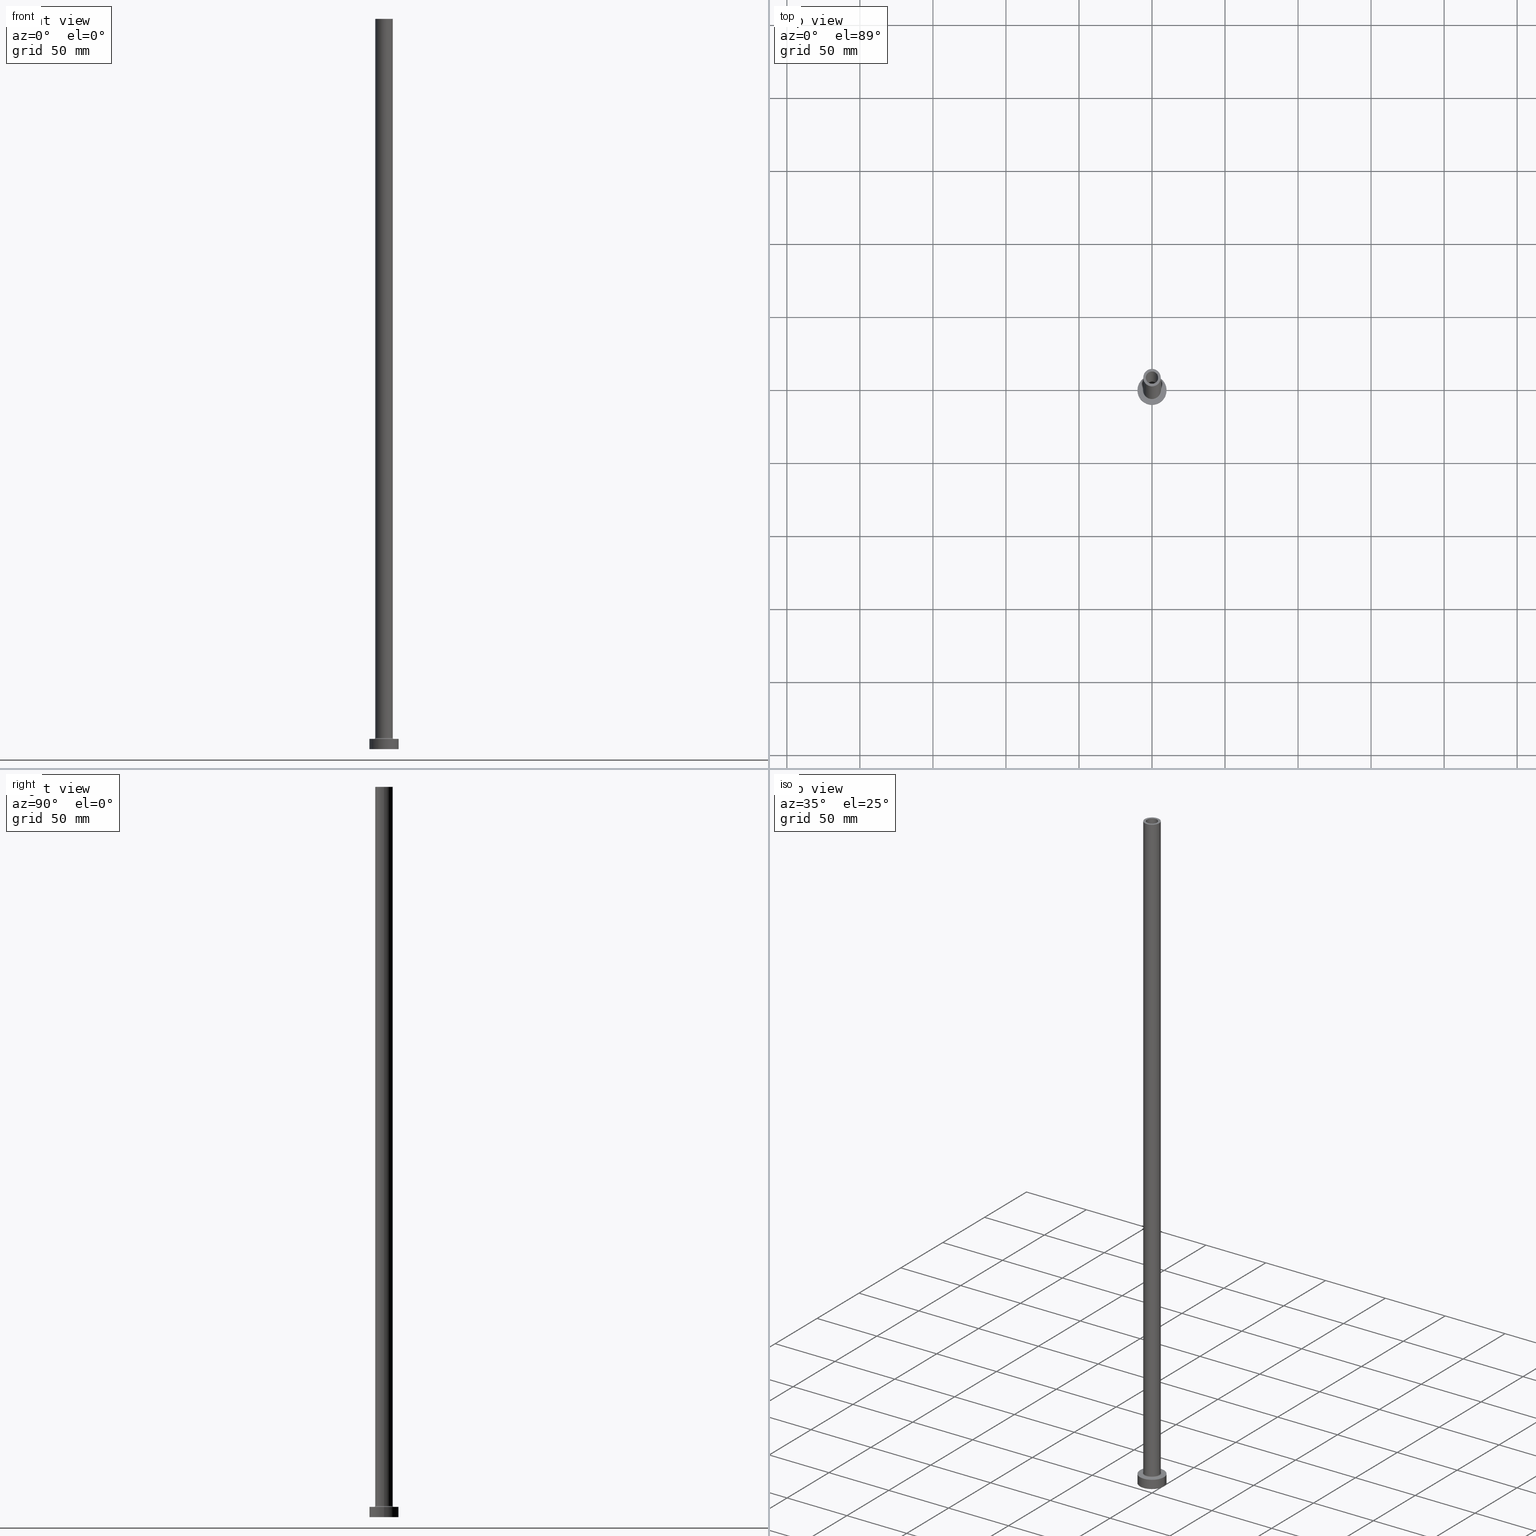
[diagram: canonical four-view strip — front | top / right | iso, engineering-drawing reading convention]
A machine part, canonical four-view strip (front | top / right | iso — engineering-drawing reading convention). The complete STEP part file that produces these views, byte-faithful:
ISO-10303-21;
HEADER;
FILE_DESCRIPTION (( 'STEP AP203' ),
    '1' );
FILE_NAME ('56db.STEP',
    '2023-02-13T11:55:45',
    ( '' ),
    ( '' ),
    'SwSTEP 2.0',
    'SolidWorks 2019',
    '' );
FILE_SCHEMA (( 'CONFIG_CONTROL_DESIGN' ));
ENDSEC;

DATA;
#1 = EDGE_CURVE ( 'NONE', #219, #106, #366, .T. ) ;
#2 = CARTESIAN_POINT ( 'NONE',  ( 10.00000000000000000, 1.224646799147353256E-15, 7.000000000000000000 ) ) ;
#3 = ORIENTED_EDGE ( 'NONE', *, *, #207, .F. ) ;
#4 = MANIFOLD_SOLID_BREP ( 'Odebrat vysunut�m4', #411 ) ;
#5 = EDGE_CURVE ( 'NONE', #29, #85, #33, .T. ) ;
#6 = VERTEX_POINT ( 'NONE', #129 ) ;
#7 = FACE_BOUND ( 'NONE', #180, .T. ) ;
#8 = CARTESIAN_POINT ( 'NONE',  ( 0.000000000000000000, 0.000000000000000000, 7.000000000000000000 ) ) ;
#9 = EDGE_CURVE ( 'NONE', #167, #106, #271, .T. ) ;
#10 = AXIS2_PLACEMENT_3D ( 'NONE', #198, #96, #124 ) ;
#11 = DIRECTION ( 'NONE',  ( 0.000000000000000000, 0.000000000000000000, -1.000000000000000000 ) ) ;
#12 = ADVANCED_FACE ( 'NONE', ( #332, #433 ), #400, .F. ) ;
#13 = APPLICATION_PROTOCOL_DEFINITION ( 'international standard', 'config_control_design', 1994, #101 ) ;
#14 = VERTEX_POINT ( 'NONE', #262 ) ;
#15 = DIRECTION ( 'NONE',  ( 1.000000000000000000, 0.000000000000000000, -0.000000000000000000 ) ) ;
#16 = CARTESIAN_POINT ( 'NONE',  ( -10.00000000000000000, 0.000000000000000000, 7.000000000000000000 ) ) ;
#17 = CIRCLE ( 'NONE', #137, 4.400000000000000355 ) ;
#18 = FACE_OUTER_BOUND ( 'NONE', #112, .T. ) ;
#19 = ORGANIZATION ( 'NEUR�EN�', 'NEUR�EN�', '' ) ;
#20 = ORIENTED_EDGE ( 'NONE', *, *, #91, .F. ) ;
#21 = CYLINDRICAL_SURFACE ( 'NONE', #209, 4.400000000000000355 ) ;
#22 = ORIENTED_EDGE ( 'NONE', *, *, #118, .T. ) ;
#23 = VECTOR ( 'NONE', #448, 1000.000000000000000 ) ;
#24 = APPROVAL_ROLE ( '' ) ;
#25 = CIRCLE ( 'NONE', #412, 4.400000000000000355 ) ;
#26 = DIRECTION ( 'NONE',  ( 0.000000000000000000, 0.000000000000000000, 1.000000000000000000 ) ) ;
#27 = APPROVAL ( #459, 'NEUR�EN�' ) ;
#28 = DIRECTION ( 'NONE',  ( 1.000000000000000000, 0.000000000000000000, 0.000000000000000000 ) ) ;
#29 = VERTEX_POINT ( 'NONE', #189 ) ;
#30 = ADVANCED_BREP_SHAPE_REPRESENTATION ( '56db', ( #4, #264 ), #458 ) ;
#31 = DIRECTION ( 'NONE',  ( -1.000000000000000000, 0.000000000000000000, 0.000000000000000000 ) ) ;
#32 = ORIENTED_EDGE ( 'NONE', *, *, #199, .T. ) ;
#33 = CIRCLE ( 'NONE', #132, 0.7000000000000000666 ) ;
#34 = DIRECTION ( 'NONE',  ( 0.000000000000000000, 0.000000000000000000, 1.000000000000000000 ) ) ;
#35 = ADVANCED_FACE ( 'NONE', ( #260 ), #372, .F. ) ;
#36 = VERTEX_POINT ( 'NONE', #407 ) ;
#37 = DATE_AND_TIME ( #173, #449 ) ;
#38 = ORIENTED_EDGE ( 'NONE', *, *, #184, .F. ) ;
#39 = PRODUCT_DEFINITION ( 'NEZN�M�', '', #40, #430 ) ;
#40 = PRODUCT_DEFINITION_FORMATION_WITH_SPECIFIED_SOURCE ( 'LIBOVOLN�', '', #59, .NOT_KNOWN. ) ;
#41 = DIRECTION ( 'NONE',  ( 0.000000000000000000, 0.000000000000000000, 1.000000000000000000 ) ) ;
#42 = EDGE_LOOP ( 'NONE', ( #55, #397, #249, #32 ) ) ;
#43 = AXIS2_PLACEMENT_3D ( 'NONE', #305, #202, #238 ) ;
#44 = EDGE_LOOP ( 'NONE', ( #38, #22, #143, #186 ) ) ;
#45 = CIRCLE ( 'NONE', #303, 4.400000000000000355 ) ;
#46 = CARTESIAN_POINT ( 'NONE',  ( 0.000000000000000000, 0.000000000000000000, 455.0000000000000000 ) ) ;
#47 = CC_DESIGN_SECURITY_CLASSIFICATION ( #355, ( #40 ) ) ;
#48 = DIRECTION ( 'NONE',  ( 0.000000000000000000, 0.000000000000000000, -1.000000000000000000 ) ) ;
#49 = DIRECTION ( 'NONE',  ( 0.000000000000000000, -1.000000000000000000, 0.000000000000000000 ) ) ;
#50 = DIRECTION ( 'NONE',  ( 1.000000000000000000, 0.000000000000000000, 0.000000000000000000 ) ) ;
#51 = EDGE_CURVE ( 'NONE', #357, #85, #210, .T. ) ;
#52 = AXIS2_PLACEMENT_3D ( 'NONE', #440, #201, #15 ) ;
#53 = AXIS2_PLACEMENT_3D ( 'NONE', #298, #429, #154 ) ;
#54 = LINE ( 'NONE', #197, #65 ) ;
#55 = ORIENTED_EDGE ( 'NONE', *, *, #118, .F. ) ;
#56 = UNCERTAINTY_MEASURE_WITH_UNIT (LENGTH_MEASURE( 1.000000000000000082E-05 ), #204, 'distance_accuracy_value', 'NONE');
#57 = DIRECTION ( 'NONE',  ( -0.000000000000000000, -0.000000000000000000, -1.000000000000000000 ) ) ;
#58 = CC_DESIGN_PERSON_AND_ORGANIZATION_ASSIGNMENT ( #387, #138, ( #40 ) ) ;
#59 = PRODUCT ( '56db', '56db', '', ( #304 ) ) ;
#60 = VECTOR ( 'NONE', #431, 1000.000000000000000 ) ;
#61 = DATE_AND_TIME ( #275, #404 ) ;
#62 = CARTESIAN_POINT ( 'NONE',  ( 4.400000000000000355, 5.388445916248354013E-16, 467.4450793488832687 ) ) ;
#63 = EDGE_LOOP ( 'NONE', ( #405, #212 ) ) ;
#64 = EDGE_CURVE ( 'NONE', #85, #357, #236, .T. ) ;
#65 = VECTOR ( 'NONE', #117, 1000.000000000000000 ) ;
#66 = CARTESIAN_POINT ( 'NONE',  ( -4.400000000000000355, 0.000000000000000000, 455.0000000000000000 ) ) ;
#67 = VERTEX_POINT ( 'NONE', #438 ) ;
#68 = EDGE_CURVE ( 'NONE', #349, #177, #102, .T. ) ;
#69 = CALENDAR_DATE ( 2023, 13, 2 ) ;
#70 = DIRECTION ( 'NONE',  ( -0.000000000000000000, -0.000000000000000000, -1.000000000000000000 ) ) ;
#71 = ORIENTED_EDGE ( 'NONE', *, *, #91, .T. ) ;
#72 = LOCAL_TIME ( 12, 55, 45.00000000000000000, #377 ) ;
#73 = PERSON_AND_ORGANIZATION ( #191, #19 ) ;
#74 = APPLICATION_CONTEXT ( 'configuration controlled 3d designs of mechanical parts and assemblies' ) ;
#75 = CARTESIAN_POINT ( 'NONE',  ( 0.000000000000000000, 0.000000000000000000, 500.0000000000000000 ) ) ;
#76 = EDGE_LOOP ( 'NONE', ( #241, #153 ) ) ;
#77 = CALENDAR_DATE ( 2023, 13, 2 ) ;
#78 = VECTOR ( 'NONE', #333, 1000.000000000000000 ) ;
#79 = DIRECTION ( 'NONE',  ( 1.000000000000000000, 0.000000000000000000, 0.000000000000000000 ) ) ;
#80 = ADVANCED_FACE ( 'NONE', ( #360 ), #297, .F. ) ;
#81 = ORIENTED_EDGE ( 'NONE', *, *, #339, .F. ) ;
#82 = PERSON_AND_ORGANIZATION ( #191, #19 ) ;
#83 = DIRECTION ( 'NONE',  ( 1.000000000000000000, 0.000000000000000000, 0.000000000000000000 ) ) ;
#84 = CC_DESIGN_DATE_AND_TIME_ASSIGNMENT ( #113, #110, ( #355 ) ) ;
#85 = VERTEX_POINT ( 'NONE', #93 ) ;
#86 = DIRECTION ( 'NONE',  ( 0.000000000000000000, 0.000000000000000000, 1.000000000000000000 ) ) ;
#87 = DIRECTION ( 'NONE',  ( 0.000000000000000000, 0.000000000000000000, 1.000000000000000000 ) ) ;
#88 = CARTESIAN_POINT ( 'NONE',  ( 0.000000000000000000, 0.000000000000000000, 500.0000000000000000 ) ) ;
#89 = ORIENTED_EDGE ( 'NONE', *, *, #222, .F. ) ;
#90 = AXIS2_PLACEMENT_3D ( 'NONE', #308, #205, #234 ) ;
#91 = EDGE_CURVE ( 'NONE', #418, #219, #227, .T. ) ;
#92 = DIRECTION ( 'NONE',  ( 1.000000000000000000, 0.000000000000000000, -0.000000000000000000 ) ) ;
#93 = CARTESIAN_POINT ( 'NONE',  ( 6.700000000000001066, 0.000000000000000000, 6.999999999999992006 ) ) ;
#94 = DIRECTION ( 'NONE',  ( 0.000000000000000000, 0.000000000000000000, 1.000000000000000000 ) ) ;
#95 = EDGE_CURVE ( 'NONE', #426, #258, #415, .T. ) ;
#96 = DIRECTION ( 'NONE',  ( 0.000000000000000000, 0.000000000000000000, 1.000000000000000000 ) ) ;
#97 = AXIS2_PLACEMENT_3D ( 'NONE', #323, #179, #218 ) ;
#98 = CARTESIAN_POINT ( 'NONE',  ( -4.250000000000000000, 0.000000000000000000, 500.0000000000000000 ) ) ;
#99 = DIRECTION ( 'NONE',  ( 0.000000000000000000, 0.000000000000000000, 1.000000000000000000 ) ) ;
#100 = AXIS2_PLACEMENT_3D ( 'NONE', #194, #121, #152 ) ;
#101 = APPLICATION_CONTEXT ( 'configuration controlled 3d designs of mechanical parts and assemblies' ) ;
#102 = CIRCLE ( 'NONE', #224, 10.00000000000000000 ) ;
#103 = DIRECTION ( 'NONE',  ( -1.000000000000000000, 0.000000000000000000, 0.000000000000000000 ) ) ;
#104 = DIRECTION ( 'NONE',  ( 1.000000000000000000, 0.000000000000000000, 0.000000000000000000 ) ) ;
#105 = DIRECTION ( 'NONE',  ( -0.000000000000000000, -0.000000000000000000, -1.000000000000000000 ) ) ;
#106 = VERTEX_POINT ( 'NONE', #196 ) ;
#107 = EDGE_LOOP ( 'NONE', ( #456, #109 ) ) ;
#108 = CC_DESIGN_PERSON_AND_ORGANIZATION_ASSIGNMENT ( #164, #242, ( #39 ) ) ;
#109 = ORIENTED_EDGE ( 'NONE', *, *, #293, .F. ) ;
#110 = DATE_TIME_ROLE ( 'classification_date' ) ;
#111 = DIRECTION ( 'NONE',  ( 0.000000000000000000, 0.000000000000000000, 1.000000000000000000 ) ) ;
#112 = EDGE_LOOP ( 'NONE', ( #286, #81, #315, #329 ) ) ;
#113 = DATE_AND_TIME ( #450, #190 ) ;
#114 = AXIS2_PLACEMENT_3D ( 'NONE', #351, #248, #314 ) ;
#115 = DIRECTION ( 'NONE',  ( -0.000000000000000000, -0.000000000000000000, -1.000000000000000000 ) ) ;
#116 = ORIENTED_EDGE ( 'NONE', *, *, #148, .F. ) ;
#117 = DIRECTION ( 'NONE',  ( -0.000000000000000000, -0.000000000000000000, -1.000000000000000000 ) ) ;
#118 = EDGE_CURVE ( 'NONE', #454, #29, #157, .T. ) ;
#119 = ORIENTED_EDGE ( 'NONE', *, *, #261, .F. ) ;
#120 = APPROVAL_PERSON_ORGANIZATION ( #320, #27, #24 ) ;
#121 = DIRECTION ( 'NONE',  ( 0.000000000000000000, 0.000000000000000000, 1.000000000000000000 ) ) ;
#122 = CARTESIAN_POINT ( 'NONE',  ( 6.700000000000001066, 0.000000000000000000, 7.699999999999985079 ) ) ;
#123 = FACE_OUTER_BOUND ( 'NONE', #384, .T. ) ;
#124 = DIRECTION ( 'NONE',  ( 1.000000000000000000, 0.000000000000000000, -0.000000000000000000 ) ) ;
#125 = APPROVAL ( #256, 'NEUR�EN�' ) ;
#126 = DIRECTION ( 'NONE',  ( 1.000000000000000000, 0.000000000000000000, 0.000000000000000000 ) ) ;
#127 = ADVANCED_FACE ( 'NONE', ( #409 ), #170, .F. ) ;
#128 = DIRECTION ( 'NONE',  ( 0.000000000000000000, 0.000000000000000000, 1.000000000000000000 ) ) ;
#129 = CARTESIAN_POINT ( 'NONE',  ( 4.400000000000000355, 5.388445916248354013E-16, 0.000000000000000000 ) ) ;
#130 = CARTESIAN_POINT ( 'NONE',  ( 0.000000000000000000, 0.000000000000000000, 7.699999999999985079 ) ) ;
#131 = DIRECTION ( 'NONE',  ( 0.000000000000000000, 0.000000000000000000, -1.000000000000000000 ) ) ;
#132 = AXIS2_PLACEMENT_3D ( 'NONE', #122, #49, #131 ) ;
#133 = DIRECTION ( 'NONE',  ( 0.000000000000000000, 0.000000000000000000, -1.000000000000000000 ) ) ;
#134 = PERSON_AND_ORGANIZATION ( #191, #19 ) ;
#135 = COORDINATED_UNIVERSAL_TIME_OFFSET ( 1, 0, .AHEAD. ) ;
#136 = CIRCLE ( 'NONE', #330, 4.250000000000000000 ) ;
#137 = AXIS2_PLACEMENT_3D ( 'NONE', #460, #213, #28 ) ;
#138 = PERSON_AND_ORGANIZATION_ROLE ( 'creator' ) ;
#139 = EDGE_LOOP ( 'NONE', ( #89, #389, #295, #324 ) ) ;
#140 = TOROIDAL_SURFACE ( 'NONE', #443, 6.700000000000001066, 0.6999999999999999556 ) ;
#141 = ORIENTED_EDGE ( 'NONE', *, *, #207, .T. ) ;
#142 = APPROVAL_DATE_TIME ( #181, #125 ) ;
#143 = ORIENTED_EDGE ( 'NONE', *, *, #385, .T. ) ;
#144 = PERSON_AND_ORGANIZATION_ROLE ( 'classification_officer' ) ;
#145 = CARTESIAN_POINT ( 'NONE',  ( -4.250000000000000000, 0.000000000000000000, 455.0000000000000000 ) ) ;
#146 = EDGE_LOOP ( 'NONE', ( #141, #160, #251, #20 ) ) ;
#147 = AXIS2_PLACEMENT_3D ( 'NONE', #398, #94, #367 ) ;
#148 = EDGE_CURVE ( 'NONE', #167, #418, #136, .T. ) ;
#149 = AXIS2_PLACEMENT_3D ( 'NONE', #226, #362, #302 ) ;
#150 = CARTESIAN_POINT ( 'NONE',  ( 0.000000000000000000, 0.000000000000000000, 0.000000000000000000 ) ) ;
#151 = EDGE_LOOP ( 'NONE', ( #328, #183, #322, #244 ) ) ;
#152 = DIRECTION ( 'NONE',  ( 1.000000000000000000, 0.000000000000000000, 0.000000000000000000 ) ) ;
#153 = ORIENTED_EDGE ( 'NONE', *, *, #68, .T. ) ;
#154 = DIRECTION ( 'NONE',  ( 1.000000000000000000, 0.000000000000000000, 0.000000000000000000 ) ) ;
#155 = DIRECTION ( 'NONE',  ( 1.000000000000000000, 0.000000000000000000, 0.000000000000000000 ) ) ;
#156 = EDGE_CURVE ( 'NONE', #426, #6, #445, .T. ) ;
#157 = LINE ( 'NONE', #240, #335 ) ;
#158 = APPROVAL ( #274, 'NEUR�EN�' ) ;
#159 = CARTESIAN_POINT ( 'NONE',  ( 4.400000000000000355, 5.388445916248354013E-16, 455.0000000000000000 ) ) ;
#160 = ORIENTED_EDGE ( 'NONE', *, *, #9, .T. ) ;
#161 = DIRECTION ( 'NONE',  ( 1.000000000000000000, 0.000000000000000000, 0.000000000000000000 ) ) ;
#162 = APPLICATION_PROTOCOL_DEFINITION ( 'international standard', 'config_control_design', 1994, #74 ) ;
#163 = ADVANCED_FACE ( 'NONE', ( #18 ), #278, .T. ) ;
#164 = PERSON_AND_ORGANIZATION ( #191, #19 ) ;
#165 = CC_DESIGN_APPROVAL ( #125, ( #355 ) ) ;
#166 = CARTESIAN_POINT ( 'NONE',  ( 0.000000000000000000, 0.000000000000000000, 7.000000000000000000 ) ) ;
#167 = VERTEX_POINT ( 'NONE', #306 ) ;
#168 = EDGE_CURVE ( 'NONE', #177, #67, #441, .T. ) ;
#169 = FACE_OUTER_BOUND ( 'NONE', #139, .T. ) ;
#170 = CYLINDRICAL_SURFACE ( 'NONE', #90, 4.250000000000000000 ) ;
#171 = AXIS2_PLACEMENT_3D ( 'NONE', #285, #185, #288 ) ;
#172 = CC_DESIGN_DATE_AND_TIME_ASSIGNMENT ( #390, #382, ( #39 ) ) ;
#173 = CALENDAR_DATE ( 2023, 13, 2 ) ;
#174 = CYLINDRICAL_SURFACE ( 'NONE', #171, 10.00000000000000000 ) ;
#175 = VERTEX_POINT ( 'NONE', #182 ) ;
#176 = FACE_OUTER_BOUND ( 'NONE', #63, .T. ) ;
#177 = VERTEX_POINT ( 'NONE', #215 ) ;
#178 = AXIS2_PLACEMENT_3D ( 'NONE', #150, #86, #338 ) ;
#179 = DIRECTION ( 'NONE',  ( 0.000000000000000000, 0.000000000000000000, 1.000000000000000000 ) ) ;
#180 = EDGE_LOOP ( 'NONE', ( #421, #255 ) ) ;
#181 = DATE_AND_TIME ( #77, #327 ) ;
#182 = CARTESIAN_POINT ( 'NONE',  ( -6.000000000000000888, 0.000000000000000000, 7.699999999999985079 ) ) ;
#183 = ORIENTED_EDGE ( 'NONE', *, *, #222, .T. ) ;
#184 = EDGE_CURVE ( 'NONE', #454, #36, #195, .T. ) ;
#185 = DIRECTION ( 'NONE',  ( -0.000000000000000000, -0.000000000000000000, -1.000000000000000000 ) ) ;
#186 = ORIENTED_EDGE ( 'NONE', *, *, #396, .F. ) ;
#187 = VECTOR ( 'NONE', #265, 1000.000000000000000 ) ;
#188 = CIRCLE ( 'NONE', #439, 10.00000000000000000 ) ;
#189 = CARTESIAN_POINT ( 'NONE',  ( 6.000000000000000888, 7.347880794884120722E-16, 7.699999999999985079 ) ) ;
#190 = LOCAL_TIME ( 12, 55, 45.00000000000000000, #287 ) ;
#191 = PERSON ( 'NEUR�EN�', 'NEUR�EN�', 'NEUR�EN�', ('NEUR�EN�'), ('NEUR�EN�'), ('NEUR�EN�') ) ;
#192 = DIRECTION ( 'NONE',  ( 1.000000000000000000, 0.000000000000000000, 0.000000000000000000 ) ) ;
#193 = AXIS2_PLACEMENT_3D ( 'NONE', #88, #48, #403 ) ;
#194 = CARTESIAN_POINT ( 'NONE',  ( 0.000000000000000000, 0.000000000000000000, 455.0000000000000000 ) ) ;
#195 = CIRCLE ( 'NONE', #114, 6.000000000000000888 ) ;
#196 = CARTESIAN_POINT ( 'NONE',  ( 4.250000000000000000, 5.204748896376249713E-16, 455.0000000000000000 ) ) ;
#197 = CARTESIAN_POINT ( 'NONE',  ( -6.000000000000000888, 0.000000000000000000, 500.0000000000000000 ) ) ;
#198 = CARTESIAN_POINT ( 'NONE',  ( 0.000000000000000000, 0.000000000000000000, 455.0000000000000000 ) ) ;
#199 = EDGE_CURVE ( 'NONE', #175, #29, #444, .T. ) ;
#200 = APPROVAL_PERSON_ORGANIZATION ( #134, #158, #408 ) ;
#201 = DIRECTION ( 'NONE',  ( 0.000000000000000000, 0.000000000000000000, 1.000000000000000000 ) ) ;
#202 = DIRECTION ( 'NONE',  ( -0.000000000000000000, -0.000000000000000000, -1.000000000000000000 ) ) ;
#203 = CARTESIAN_POINT ( 'NONE',  ( 0.000000000000000000, 0.000000000000000000, 500.0000000000000000 ) ) ;
#204 =( LENGTH_UNIT ( ) NAMED_UNIT ( * ) SI_UNIT ( .MILLI., .METRE. ) );
#205 = DIRECTION ( 'NONE',  ( 0.000000000000000000, 0.000000000000000000, -1.000000000000000000 ) ) ;
#206 = FACE_OUTER_BOUND ( 'NONE', #413, .T. ) ;
#207 = EDGE_CURVE ( 'NONE', #418, #167, #290, .T. ) ;
#208 = PLANE ( 'NONE',  #52 ) ;
#209 = AXIS2_PLACEMENT_3D ( 'NONE', #269, #133, #103 ) ;
#210 = CIRCLE ( 'NONE', #149, 6.700000000000001066 ) ;
#211 = DIRECTION ( 'NONE',  ( 1.000000000000000000, 0.000000000000000000, 0.000000000000000000 ) ) ;
#212 = ORIENTED_EDGE ( 'NONE', *, *, #410, .F. ) ;
#213 = DIRECTION ( 'NONE',  ( 0.000000000000000000, 0.000000000000000000, 1.000000000000000000 ) ) ;
#214 = ORIENTED_EDGE ( 'NONE', *, *, #410, .T. ) ;
#215 = CARTESIAN_POINT ( 'NONE',  ( -10.00000000000000000, 0.000000000000000000, 7.000000000000000000 ) ) ;
#216 = ORIENTED_EDGE ( 'NONE', *, *, #358, .F. ) ;
#217 = PERSON_AND_ORGANIZATION_ROLE ( 'design_supplier' ) ;
#218 = DIRECTION ( 'NONE',  ( 1.000000000000000000, 0.000000000000000000, 0.000000000000000000 ) ) ;
#219 = VERTEX_POINT ( 'NONE', #145 ) ;
#220 = FACE_BOUND ( 'NONE', #107, .T. ) ;
#221 = EDGE_LOOP ( 'NONE', ( #416, #399 ) ) ;
#222 = EDGE_CURVE ( 'NONE', #175, #357, #343, .T. ) ;
#223 = ORIENTED_EDGE ( 'NONE', *, *, #253, .T. ) ;
#224 = AXIS2_PLACEMENT_3D ( 'NONE', #8, #326, #155 ) ;
#225 = CARTESIAN_POINT ( 'NONE',  ( 0.000000000000000000, 0.000000000000000000, 7.699999999999985079 ) ) ;
#226 = CARTESIAN_POINT ( 'NONE',  ( 0.000000000000000000, 0.000000000000000000, 7.000000000000000000 ) ) ;
#227 = LINE ( 'NONE', #231, #78 ) ;
#228 = PRODUCT_DEFINITION_SHAPE ( 'NONE', 'NONE',  #39 ) ;
#229 = CARTESIAN_POINT ( 'NONE',  ( 10.00000000000000000, 1.224646799147353256E-15, 7.000000000000000000 ) ) ;
#230 = AXIS2_PLACEMENT_3D ( 'NONE', #225, #87, #126 ) ;
#231 = CARTESIAN_POINT ( 'NONE',  ( -4.250000000000000000, 0.000000000000000000, 500.0000000000000000 ) ) ;
#232 = EDGE_CURVE ( 'NONE', #67, #376, #188, .T. ) ;
#233 = FACE_OUTER_BOUND ( 'NONE', #42, .T. ) ;
#234 = DIRECTION ( 'NONE',  ( -1.000000000000000000, 0.000000000000000000, 0.000000000000000000 ) ) ;
#235 = CYLINDRICAL_SURFACE ( 'NONE', #43, 6.000000000000000888 ) ;
#236 = CIRCLE ( 'NONE', #247, 6.700000000000001066 ) ;
#237 = CIRCLE ( 'NONE', #350, 6.000000000000000888 ) ;
#238 = DIRECTION ( 'NONE',  ( -1.000000000000000000, 0.000000000000000000, 0.000000000000000000 ) ) ;
#239 = EDGE_CURVE ( 'NONE', #14, #6, #45, .T. ) ;
#240 = CARTESIAN_POINT ( 'NONE',  ( 6.000000000000000888, 7.347880794884120722E-16, 500.0000000000000000 ) ) ;
#241 = ORIENTED_EDGE ( 'NONE', *, *, #339, .T. ) ;
#242 = PERSON_AND_ORGANIZATION_ROLE ( 'creator' ) ;
#243 = CC_DESIGN_PERSON_AND_ORGANIZATION_ASSIGNMENT ( #369, #436, ( #59 ) ) ;
#244 = ORIENTED_EDGE ( 'NONE', *, *, #5, .F. ) ;
#245 = COORDINATED_UNIVERSAL_TIME_OFFSET ( 1, 0, .AHEAD. ) ;
#246 = CARTESIAN_POINT ( 'NONE',  ( -6.700000000000001066, 8.205133554287267548E-16, 6.999999999999992006 ) ) ;
#247 = AXIS2_PLACEMENT_3D ( 'NONE', #263, #435, #192 ) ;
#248 = DIRECTION ( 'NONE',  ( 0.000000000000000000, 0.000000000000000000, 1.000000000000000000 ) ) ;
#249 = ORIENTED_EDGE ( 'NONE', *, *, #396, .T. ) ;
#250 = FACE_OUTER_BOUND ( 'NONE', #378, .T. ) ;
#251 = ORIENTED_EDGE ( 'NONE', *, *, #1, .F. ) ;
#252 = APPROVAL_ROLE ( '' ) ;
#253 = EDGE_CURVE ( 'NONE', #258, #14, #453, .T. ) ;
#254 = DIRECTION ( 'NONE',  ( 1.000000000000000000, 0.000000000000000000, 0.000000000000000000 ) ) ;
#255 = ORIENTED_EDGE ( 'NONE', *, *, #51, .T. ) ;
#256 = APPROVAL_STATUS ( 'not_yet_approved' ) ;
#257 = CARTESIAN_POINT ( 'NONE',  ( -6.700000000000001066, 8.205133554287267548E-16, 7.699999999999985079 ) ) ;
#258 = VERTEX_POINT ( 'NONE', #66 ) ;
#259 = ORIENTED_EDGE ( 'NONE', *, *, #156, .T. ) ;
#260 = FACE_OUTER_BOUND ( 'NONE', #151, .T. ) ;
#261 = EDGE_CURVE ( 'NONE', #258, #426, #17, .T. ) ;
#262 = CARTESIAN_POINT ( 'NONE',  ( -4.400000000000000355, 0.000000000000000000, 0.000000000000000000 ) ) ;
#263 = CARTESIAN_POINT ( 'NONE',  ( 0.000000000000000000, 0.000000000000000000, 7.000000000000000000 ) ) ;
#264 = AXIS2_PLACEMENT_3D ( 'NONE', #373, #301, #336 ) ;
#265 = DIRECTION ( 'NONE',  ( -0.000000000000000000, -0.000000000000000000, -1.000000000000000000 ) ) ;
#266 = ADVANCED_FACE ( 'NONE', ( #250 ), #174, .T. ) ;
#267 = CARTESIAN_POINT ( 'NONE',  ( 0.000000000000000000, 0.000000000000000000, 467.4450793488832687 ) ) ;
#268 = AXIS2_PLACEMENT_3D ( 'NONE', #417, #420, #388 ) ;
#269 = CARTESIAN_POINT ( 'NONE',  ( 0.000000000000000000, 0.000000000000000000, 467.4450793488832687 ) ) ;
#270 = AXIS2_PLACEMENT_3D ( 'NONE', #46, #364, #50 ) ;
#271 = LINE ( 'NONE', #359, #60 ) ;
#272 =( NAMED_UNIT ( * ) PLANE_ANGLE_UNIT ( ) SI_UNIT ( $, .RADIAN. ) );
#273 = CC_DESIGN_APPROVAL ( #158, ( #39 ) ) ;
#274 = APPROVAL_STATUS ( 'not_yet_approved' ) ;
#275 = CALENDAR_DATE ( 2023, 13, 2 ) ;
#276 = AXIS2_PLACEMENT_3D ( 'NONE', #267, #11, #368 ) ;
#277 = APPROVAL_DATE_TIME ( #61, #158 ) ;
#278 = CYLINDRICAL_SURFACE ( 'NONE', #309, 10.00000000000000000 ) ;
#279 = DIRECTION ( 'NONE',  ( 1.224646799147353207E-16, 1.000000000000000000, -0.000000000000000000 ) ) ;
#280 = ADVANCED_FACE ( 'NONE', ( #455 ), #348, .T. ) ;
#281 = ORIENTED_EDGE ( 'NONE', *, *, #95, .F. ) ;
#282 = DIRECTION ( 'NONE',  ( 1.000000000000000000, 0.000000000000000000, 0.000000000000000000 ) ) ;
#283 = ORIENTED_EDGE ( 'NONE', *, *, #9, .F. ) ;
#284 = ORIENTED_EDGE ( 'NONE', *, *, #156, .F. ) ;
#285 = CARTESIAN_POINT ( 'NONE',  ( 0.000000000000000000, 0.000000000000000000, 7.000000000000000000 ) ) ;
#286 = ORIENTED_EDGE ( 'NONE', *, *, #375, .F. ) ;
#287 = COORDINATED_UNIVERSAL_TIME_OFFSET ( 1, 0, .AHEAD. ) ;
#288 = DIRECTION ( 'NONE',  ( -1.000000000000000000, 0.000000000000000000, 0.000000000000000000 ) ) ;
#289 = ORIENTED_EDGE ( 'NONE', *, *, #239, .T. ) ;
#290 = CIRCLE ( 'NONE', #97, 4.250000000000000000 ) ;
#291 = CIRCLE ( 'NONE', #100, 4.250000000000000000 ) ;
#292 = EDGE_LOOP ( 'NONE', ( #119, #281 ) ) ;
#293 = EDGE_CURVE ( 'NONE', #6, #14, #25, .T. ) ;
#294 = EDGE_LOOP ( 'NONE', ( #345, #259, #393, #427 ) ) ;
#295 = ORIENTED_EDGE ( 'NONE', *, *, #5, .T. ) ;
#296 = AXIS2_PLACEMENT_3D ( 'NONE', #451, #105, #31 ) ;
#297 = CYLINDRICAL_SURFACE ( 'NONE', #276, 4.400000000000000355 ) ;
#298 = CARTESIAN_POINT ( 'NONE',  ( 0.000000000000000000, 0.000000000000000000, 455.0000000000000000 ) ) ;
#299 = APPROVAL_PERSON_ORGANIZATION ( #312, #125, #252 ) ;
#300 = ADVANCED_FACE ( 'NONE', ( #220, #176 ), #316, .F. ) ;
#301 = DIRECTION ( 'NONE',  ( 0.000000000000000000, 0.000000000000000000, 1.000000000000000000 ) ) ;
#302 = DIRECTION ( 'NONE',  ( 1.000000000000000000, 0.000000000000000000, 0.000000000000000000 ) ) ;
#303 = AXIS2_PLACEMENT_3D ( 'NONE', #380, #70, #282 ) ;
#304 = MECHANICAL_CONTEXT ( 'NONE', #74, 'mechanical' ) ;
#305 = CARTESIAN_POINT ( 'NONE',  ( 0.000000000000000000, 0.000000000000000000, 500.0000000000000000 ) ) ;
#306 = CARTESIAN_POINT ( 'NONE',  ( 4.250000000000000000, 5.204748896376249713E-16, 500.0000000000000000 ) ) ;
#307 =( NAMED_UNIT ( * ) SI_UNIT ( $, .STERADIAN. ) SOLID_ANGLE_UNIT ( ) );
#308 = CARTESIAN_POINT ( 'NONE',  ( 0.000000000000000000, 0.000000000000000000, 500.0000000000000000 ) ) ;
#309 = AXIS2_PLACEMENT_3D ( 'NONE', #166, #57, #310 ) ;
#310 = DIRECTION ( 'NONE',  ( -1.000000000000000000, 0.000000000000000000, 0.000000000000000000 ) ) ;
#311 = ORIENTED_EDGE ( 'NONE', *, *, #358, .T. ) ;
#312 = PERSON_AND_ORGANIZATION ( #191, #19 ) ;
#313 = EDGE_CURVE ( 'NONE', #36, #454, #237, .T. ) ;
#314 = DIRECTION ( 'NONE',  ( 1.000000000000000000, 0.000000000000000000, 0.000000000000000000 ) ) ;
#315 = ORIENTED_EDGE ( 'NONE', *, *, #168, .T. ) ;
#316 = PLANE ( 'NONE',  #268 ) ;
#317 = EDGE_LOOP ( 'NONE', ( #3, #116 ) ) ;
#318 = DIRECTION ( 'NONE',  ( 1.000000000000000000, 0.000000000000000000, 0.000000000000000000 ) ) ;
#319 = ORIENTED_EDGE ( 'NONE', *, *, #68, .F. ) ;
#320 = PERSON_AND_ORGANIZATION ( #191, #19 ) ;
#321 = CARTESIAN_POINT ( 'NONE',  ( 0.000000000000000000, 0.000000000000000000, 0.000000000000000000 ) ) ;
#322 = ORIENTED_EDGE ( 'NONE', *, *, #64, .F. ) ;
#323 = CARTESIAN_POINT ( 'NONE',  ( 0.000000000000000000, 0.000000000000000000, 500.0000000000000000 ) ) ;
#324 = ORIENTED_EDGE ( 'NONE', *, *, #51, .F. ) ;
#325 = AXIS2_PLACEMENT_3D ( 'NONE', #356, #34, #211 ) ;
#326 = DIRECTION ( 'NONE',  ( 0.000000000000000000, 0.000000000000000000, 1.000000000000000000 ) ) ;
#327 = LOCAL_TIME ( 12, 55, 45.00000000000000000, #245 ) ;
#328 = ORIENTED_EDGE ( 'NONE', *, *, #199, .F. ) ;
#329 = ORIENTED_EDGE ( 'NONE', *, *, #232, .T. ) ;
#330 = AXIS2_PLACEMENT_3D ( 'NONE', #203, #26, #104 ) ;
#331 = FACE_OUTER_BOUND ( 'NONE', #76, .T. ) ;
#332 = FACE_BOUND ( 'NONE', #352, .T. ) ;
#333 = DIRECTION ( 'NONE',  ( 0.000000000000000000, 0.000000000000000000, -1.000000000000000000 ) ) ;
#334 = FACE_OUTER_BOUND ( 'NONE', #221, .T. ) ;
#335 = VECTOR ( 'NONE', #342, 1000.000000000000000 ) ;
#336 = DIRECTION ( 'NONE',  ( 1.000000000000000000, 0.000000000000000000, 0.000000000000000000 ) ) ;
#337 = DIRECTION ( 'NONE',  ( 0.000000000000000000, 0.000000000000000000, -1.000000000000000000 ) ) ;
#338 = DIRECTION ( 'NONE',  ( 1.000000000000000000, 0.000000000000000000, 0.000000000000000000 ) ) ;
#339 = EDGE_CURVE ( 'NONE', #177, #349, #341, .T. ) ;
#340 = SHAPE_DEFINITION_REPRESENTATION ( #228, #30 ) ;
#341 = CIRCLE ( 'NONE', #365, 10.00000000000000000 ) ;
#342 = DIRECTION ( 'NONE',  ( -0.000000000000000000, -0.000000000000000000, -1.000000000000000000 ) ) ;
#343 = CIRCLE ( 'NONE', #381, 0.7000000000000000666 ) ;
#344 = CARTESIAN_POINT ( 'NONE',  ( -4.400000000000000355, 0.000000000000000000, 467.4450793488832687 ) ) ;
#345 = ORIENTED_EDGE ( 'NONE', *, *, #261, .T. ) ;
#346 = CC_DESIGN_PERSON_AND_ORGANIZATION_ASSIGNMENT ( #73, #144, ( #355 ) ) ;
#347 = SECURITY_CLASSIFICATION_LEVEL ( 'unclassified' ) ;
#348 = CYLINDRICAL_SURFACE ( 'NONE', #296, 6.000000000000000888 ) ;
#349 = VERTEX_POINT ( 'NONE', #2 ) ;
#350 = AXIS2_PLACEMENT_3D ( 'NONE', #75, #111, #254 ) ;
#351 = CARTESIAN_POINT ( 'NONE',  ( 0.000000000000000000, 0.000000000000000000, 500.0000000000000000 ) ) ;
#352 = EDGE_LOOP ( 'NONE', ( #402, #311 ) ) ;
#353 = DIRECTION ( 'NONE',  ( 0.000000000000000000, 0.000000000000000000, -1.000000000000000000 ) ) ;
#354 = ORIENTED_EDGE ( 'NONE', *, *, #148, .T. ) ;
#355 = SECURITY_CLASSIFICATION ( '', '', #347 ) ;
#356 = CARTESIAN_POINT ( 'NONE',  ( 0.000000000000000000, 0.000000000000000000, 7.699999999999985079 ) ) ;
#357 = VERTEX_POINT ( 'NONE', #246 ) ;
#358 = EDGE_CURVE ( 'NONE', #106, #219, #291, .T. ) ;
#359 = CARTESIAN_POINT ( 'NONE',  ( 4.250000000000000000, 5.204748896376249713E-16, 500.0000000000000000 ) ) ;
#360 = FACE_OUTER_BOUND ( 'NONE', #294, .T. ) ;
#361 = CYLINDRICAL_SURFACE ( 'NONE', #193, 4.250000000000000000 ) ;
#362 = DIRECTION ( 'NONE',  ( -0.000000000000000000, -0.000000000000000000, -1.000000000000000000 ) ) ;
#363 = LINE ( 'NONE', #229, #187 ) ;
#364 = DIRECTION ( 'NONE',  ( 0.000000000000000000, 0.000000000000000000, 1.000000000000000000 ) ) ;
#365 = AXIS2_PLACEMENT_3D ( 'NONE', #392, #41, #79 ) ;
#366 = CIRCLE ( 'NONE', #53, 4.250000000000000000 ) ;
#367 = DIRECTION ( 'NONE',  ( 1.000000000000000000, 0.000000000000000000, 0.000000000000000000 ) ) ;
#368 = DIRECTION ( 'NONE',  ( -1.000000000000000000, 0.000000000000000000, 0.000000000000000000 ) ) ;
#369 = PERSON_AND_ORGANIZATION ( #191, #19 ) ;
#370 = ADVANCED_FACE ( 'NONE', ( #123 ), #361, .F. ) ;
#371 = ADVANCED_FACE ( 'NONE', ( #7, #331 ), #434, .T. ) ;
#372 = TOROIDAL_SURFACE ( 'NONE', #230, 6.700000000000001066, 0.6999999999999999556 ) ;
#373 = CARTESIAN_POINT ( 'NONE',  ( 0.000000000000000000, 0.000000000000000000, 0.000000000000000000 ) ) ;
#374 = FACE_BOUND ( 'NONE', #317, .T. ) ;
#375 = EDGE_CURVE ( 'NONE', #349, #376, #363, .T. ) ;
#376 = VERTEX_POINT ( 'NONE', #406 ) ;
#377 = COORDINATED_UNIVERSAL_TIME_OFFSET ( 1, 0, .AHEAD. ) ;
#378 = EDGE_LOOP ( 'NONE', ( #319, #452, #214, #461 ) ) ;
#379 = CIRCLE ( 'NONE', #178, 10.00000000000000000 ) ;
#380 = CARTESIAN_POINT ( 'NONE',  ( 0.000000000000000000, 0.000000000000000000, 0.000000000000000000 ) ) ;
#381 = AXIS2_PLACEMENT_3D ( 'NONE', #257, #279, #395 ) ;
#382 = DATE_TIME_ROLE ( 'creation_date' ) ;
#383 = DIRECTION ( 'NONE',  ( 0.000000000000000000, 0.000000000000000000, 1.000000000000000000 ) ) ;
#384 = EDGE_LOOP ( 'NONE', ( #283, #354, #71, #216 ) ) ;
#385 = EDGE_CURVE ( 'NONE', #29, #175, #391, .T. ) ;
#386 = CC_DESIGN_APPROVAL ( #27, ( #40 ) ) ;
#387 = PERSON_AND_ORGANIZATION ( #191, #19 ) ;
#388 = DIRECTION ( 'NONE',  ( 1.000000000000000000, 0.000000000000000000, -0.000000000000000000 ) ) ;
#389 = ORIENTED_EDGE ( 'NONE', *, *, #385, .F. ) ;
#390 = DATE_AND_TIME ( #69, #72 ) ;
#391 = CIRCLE ( 'NONE', #147, 6.000000000000000888 ) ;
#392 = CARTESIAN_POINT ( 'NONE',  ( 0.000000000000000000, 0.000000000000000000, 7.000000000000000000 ) ) ;
#393 = ORIENTED_EDGE ( 'NONE', *, *, #293, .T. ) ;
#394 = VECTOR ( 'NONE', #337, 1000.000000000000000 ) ;
#395 = DIRECTION ( 'NONE',  ( -1.000000000000000000, 1.224646799147353454E-16, 0.000000000000000000 ) ) ;
#396 = EDGE_CURVE ( 'NONE', #36, #175, #54, .T. ) ;
#397 = ORIENTED_EDGE ( 'NONE', *, *, #313, .F. ) ;
#398 = CARTESIAN_POINT ( 'NONE',  ( 0.000000000000000000, 0.000000000000000000, 7.699999999999985079 ) ) ;
#399 = ORIENTED_EDGE ( 'NONE', *, *, #184, .T. ) ;
#400 = PLANE ( 'NONE',  #10 ) ;
#401 = VECTOR ( 'NONE', #353, 1000.000000000000000 ) ;
#402 = ORIENTED_EDGE ( 'NONE', *, *, #1, .T. ) ;
#403 = DIRECTION ( 'NONE',  ( -1.000000000000000000, 0.000000000000000000, 0.000000000000000000 ) ) ;
#404 = LOCAL_TIME ( 12, 55, 45.00000000000000000, #135 ) ;
#405 = ORIENTED_EDGE ( 'NONE', *, *, #232, .F. ) ;
#406 = CARTESIAN_POINT ( 'NONE',  ( 10.00000000000000000, 1.224646799147353256E-15, 0.000000000000000000 ) ) ;
#407 = CARTESIAN_POINT ( 'NONE',  ( -6.000000000000000888, 0.000000000000000000, 500.0000000000000000 ) ) ;
#408 = APPROVAL_ROLE ( '' ) ;
#409 = FACE_OUTER_BOUND ( 'NONE', #146, .T. ) ;
#410 = EDGE_CURVE ( 'NONE', #376, #67, #379, .T. ) ;
#411 = CLOSED_SHELL ( 'NONE', ( #127, #80, #35, #280, #266, #163, #371, #300, #437, #457, #423, #442, #12, #370 ) ) ;
#412 = AXIS2_PLACEMENT_3D ( 'NONE', #425, #115, #83 ) ;
#413 = EDGE_LOOP ( 'NONE', ( #284, #446, #223, #289 ) ) ;
#414 = CARTESIAN_POINT ( 'NONE',  ( 6.000000000000000888, 7.347880794884120722E-16, 500.0000000000000000 ) ) ;
#415 = CIRCLE ( 'NONE', #270, 4.400000000000000355 ) ;
#416 = ORIENTED_EDGE ( 'NONE', *, *, #313, .T. ) ;
#417 = CARTESIAN_POINT ( 'NONE',  ( 0.000000000000000000, 0.000000000000000000, 0.000000000000000000 ) ) ;
#418 = VERTEX_POINT ( 'NONE', #98 ) ;
#419 = APPROVAL_DATE_TIME ( #37, #27 ) ;
#420 = DIRECTION ( 'NONE',  ( 0.000000000000000000, 0.000000000000000000, 1.000000000000000000 ) ) ;
#421 = ORIENTED_EDGE ( 'NONE', *, *, #64, .T. ) ;
#422 = COORDINATED_UNIVERSAL_TIME_OFFSET ( 1, 0, .AHEAD. ) ;
#423 = ADVANCED_FACE ( 'NONE', ( #169 ), #140, .F. ) ;
#424 = AXIS2_PLACEMENT_3D ( 'NONE', #432, #128, #92 ) ;
#425 = CARTESIAN_POINT ( 'NONE',  ( 0.000000000000000000, 0.000000000000000000, 0.000000000000000000 ) ) ;
#426 = VERTEX_POINT ( 'NONE', #159 ) ;
#427 = ORIENTED_EDGE ( 'NONE', *, *, #253, .F. ) ;
#428 = CC_DESIGN_PERSON_AND_ORGANIZATION_ASSIGNMENT ( #82, #217, ( #40 ) ) ;
#429 = DIRECTION ( 'NONE',  ( 0.000000000000000000, 0.000000000000000000, 1.000000000000000000 ) ) ;
#430 = DESIGN_CONTEXT ( 'detailed design', #101, 'design' ) ;
#431 = DIRECTION ( 'NONE',  ( 0.000000000000000000, 0.000000000000000000, -1.000000000000000000 ) ) ;
#432 = CARTESIAN_POINT ( 'NONE',  ( 0.000000000000000000, 0.000000000000000000, 7.000000000000000000 ) ) ;
#433 = FACE_OUTER_BOUND ( 'NONE', #292, .T. ) ;
#434 = PLANE ( 'NONE',  #424 ) ;
#435 = DIRECTION ( 'NONE',  ( -0.000000000000000000, -0.000000000000000000, -1.000000000000000000 ) ) ;
#436 = PERSON_AND_ORGANIZATION_ROLE ( 'design_owner' ) ;
#437 = ADVANCED_FACE ( 'NONE', ( #233 ), #235, .T. ) ;
#438 = CARTESIAN_POINT ( 'NONE',  ( -10.00000000000000000, 0.000000000000000000, 0.000000000000000000 ) ) ;
#439 = AXIS2_PLACEMENT_3D ( 'NONE', #321, #383, #318 ) ;
#440 = CARTESIAN_POINT ( 'NONE',  ( 0.000000000000000000, 0.000000000000000000, 500.0000000000000000 ) ) ;
#441 = LINE ( 'NONE', #16, #23 ) ;
#442 = ADVANCED_FACE ( 'NONE', ( #206 ), #21, .F. ) ;
#443 = AXIS2_PLACEMENT_3D ( 'NONE', #130, #99, #161 ) ;
#444 = CIRCLE ( 'NONE', #325, 6.000000000000000888 ) ;
#445 = LINE ( 'NONE', #62, #394 ) ;
#446 = ORIENTED_EDGE ( 'NONE', *, *, #95, .T. ) ;
#447 = PRODUCT_RELATED_PRODUCT_CATEGORY ( 'detail', '', ( #59 ) ) ;
#448 = DIRECTION ( 'NONE',  ( -0.000000000000000000, -0.000000000000000000, -1.000000000000000000 ) ) ;
#449 = LOCAL_TIME ( 12, 55, 45.00000000000000000, #422 ) ;
#450 = CALENDAR_DATE ( 2023, 13, 2 ) ;
#451 = CARTESIAN_POINT ( 'NONE',  ( 0.000000000000000000, 0.000000000000000000, 500.0000000000000000 ) ) ;
#452 = ORIENTED_EDGE ( 'NONE', *, *, #375, .T. ) ;
#453 = LINE ( 'NONE', #344, #401 ) ;
#454 = VERTEX_POINT ( 'NONE', #414 ) ;
#455 = FACE_OUTER_BOUND ( 'NONE', #44, .T. ) ;
#456 = ORIENTED_EDGE ( 'NONE', *, *, #239, .F. ) ;
#457 = ADVANCED_FACE ( 'NONE', ( #374, #334 ), #208, .T. ) ;
#458 =( GEOMETRIC_REPRESENTATION_CONTEXT ( 3 ) GLOBAL_UNCERTAINTY_ASSIGNED_CONTEXT ( ( #56 ) ) GLOBAL_UNIT_ASSIGNED_CONTEXT ( ( #204, #272, #307 ) ) REPRESENTATION_CONTEXT ( 'NONE', 'WORKASPACE' ) );
#459 = APPROVAL_STATUS ( 'not_yet_approved' ) ;
#460 = CARTESIAN_POINT ( 'NONE',  ( 0.000000000000000000, 0.000000000000000000, 455.0000000000000000 ) ) ;
#461 = ORIENTED_EDGE ( 'NONE', *, *, #168, .F. ) ;
ENDSEC;
END-ISO-10303-21;
